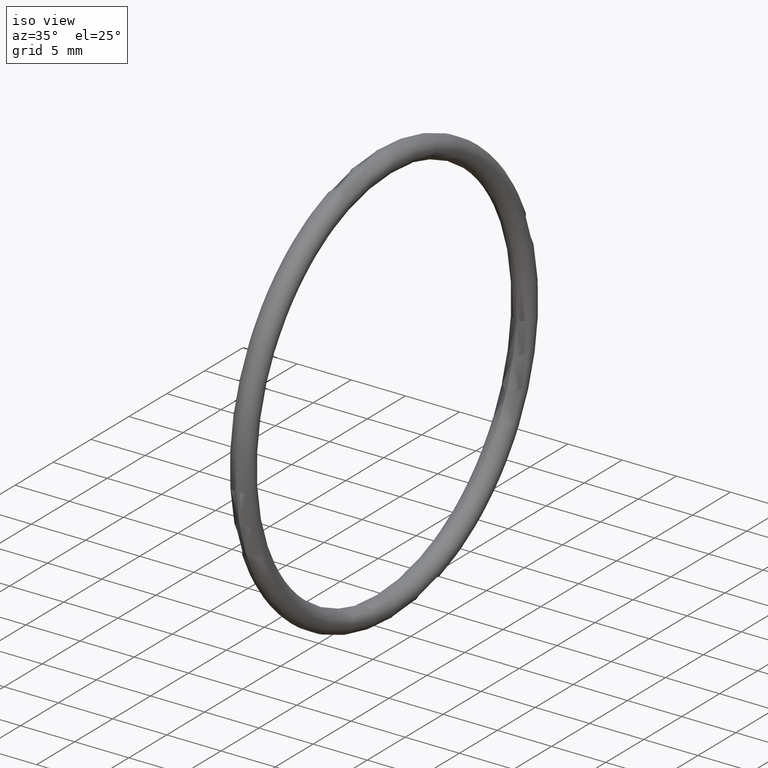
[diagram: clean part render]
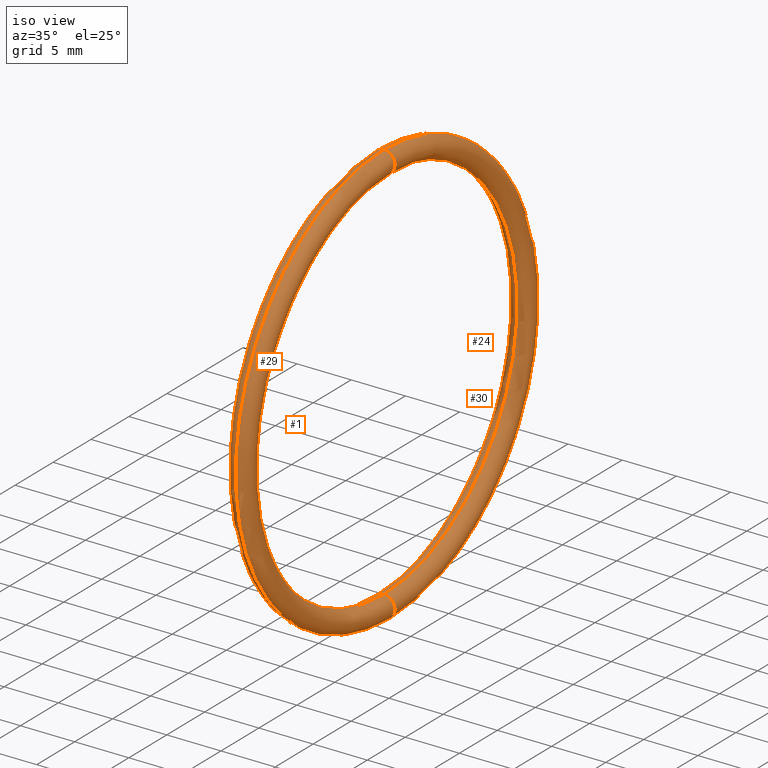
[diagram: same view with one multi-face feature highlighted, each face labeled with its STEP entity id]
A machine part, iso view. The highlighted faces form ONE feature: a constant-radius fillet chain: 4 tangent blend faces with common blend radius 1.016 mm. The faces share edges in the B-rep.
Their STEP definitions:
[1] entity #30 (Torus):
#8 = VERTEX_POINT ( 'NONE', #41 ) ;
#10 = EDGE_CURVE ( 'NONE', #11, #8, #48, .T. ) ;
#11 = VERTEX_POINT ( 'NONE', #56 ) ;
#22 = ORIENTED_EDGE ( 'NONE', *, *, #23, .F. ) ;
#23 = EDGE_CURVE ( 'NONE', #28, #8, #184, .T. ) ;
#25 = ORIENTED_EDGE ( 'NONE', *, *, #27, .F. ) ;
#26 = EDGE_LOOP ( 'NONE', ( #25, #39, #34, #22 ) ) ;
#27 = EDGE_CURVE ( 'NONE', #37, #28, #113, .T. ) ;
#28 = VERTEX_POINT ( 'NONE', #192 ) ;
#30 = ADVANCED_FACE ( 'NONE', ( #82 ), #80, .T. ) ;
#33 = EDGE_CURVE ( 'NONE', #37, #11, #110, .T. ) ;
#34 = ORIENTED_EDGE ( 'NONE', *, *, #10, .T. ) ;
#37 = VERTEX_POINT ( 'NONE', #94 ) ;
#39 = ORIENTED_EDGE ( 'NONE', *, *, #33, .T. ) ;
#41 = CARTESIAN_POINT ( 'NONE',  ( 0.1000000000000000900, 8.450062914116736900E-017, -0.6899999999999998400 ) ) ;
#46 = CARTESIAN_POINT ( 'NONE',  ( 0.1000000000000000900, 8.939921633775677100E-017, -0.7299999999999998700 ) ) ;
#47 = AXIS2_PLACEMENT_3D ( 'NONE', #46, #49, #57 ) ;
#48 = CIRCLE ( 'NONE', #47, 0.03999999999999998000 ) ;
#49 = DIRECTION ( 'NONE',  ( 0.0000000000000000000, 1.000000000000000000, 1.224646799147353200E-016 ) ) ;
#56 = CARTESIAN_POINT ( 'NONE',  ( 0.1000000000000000900, 9.429780353434617300E-017, -0.7699999999999996800 ) ) ;
#57 = DIRECTION ( 'NONE',  ( 0.0000000000000000000, -1.224646799147351000E-016, 1.000000000000000000 ) ) ;
#80 = TOROIDAL_SURFACE ( 'NONE', #81, 0.7299999999999998700, 0.03999999999999997300 ) ;
#81 = AXIS2_PLACEMENT_3D ( 'NONE', #87, #86, #85 ) ;
#82 = FACE_OUTER_BOUND ( 'NONE', #26, .T. ) ;
#84 = DIRECTION ( 'NONE',  ( 0.0000000000000000000, 0.0000000000000000000, 1.000000000000000000 ) ) ;
#85 = DIRECTION ( 'NONE',  ( 0.0000000000000000000, 0.0000000000000000000, 1.000000000000000000 ) ) ;
#86 = DIRECTION ( 'NONE',  ( -1.000000000000000000, 0.0000000000000000000, 0.0000000000000000000 ) ) ;
#87 = CARTESIAN_POINT ( 'NONE',  ( 0.1000000000000000900, 0.0000000000000000000, 0.0000000000000000000 ) ) ;
#94 = CARTESIAN_POINT ( 'NONE',  ( 0.1000000000000000900, 0.0000000000000000000, 0.7699999999999996800 ) ) ;
#102 = CARTESIAN_POINT ( 'NONE',  ( 0.1000000000000000900, 0.0000000000000000000, 0.7299999999999998700 ) ) ;
#104 = DIRECTION ( 'NONE',  ( -1.000000000000000000, 0.0000000000000000000, 0.0000000000000000000 ) ) ;
#106 = DIRECTION ( 'NONE',  ( 0.0000000000000000000, 0.0000000000000000000, 1.000000000000000000 ) ) ;
#107 = DIRECTION ( 'NONE',  ( -1.000000000000000000, 0.0000000000000000000, 0.0000000000000000000 ) ) ;
#108 = CARTESIAN_POINT ( 'NONE',  ( 0.1000000000000000900, 0.0000000000000000000, 0.0000000000000000000 ) ) ;
#109 = AXIS2_PLACEMENT_3D ( 'NONE', #108, #107, #106 ) ;
#110 = CIRCLE ( 'NONE', #109, 0.7699999999999998000 ) ;
#111 = DIRECTION ( 'NONE',  ( 0.0000000000000000000, -1.000000000000000000, 0.0000000000000000000 ) ) ;
#112 = AXIS2_PLACEMENT_3D ( 'NONE', #102, #111, #193 ) ;
#113 = CIRCLE ( 'NONE', #112, 0.03999999999999998000 ) ;
#117 = AXIS2_PLACEMENT_3D ( 'NONE', #178, #104, #84 ) ;
#178 = CARTESIAN_POINT ( 'NONE',  ( 0.1000000000000000900, 0.0000000000000000000, 0.0000000000000000000 ) ) ;
#184 = CIRCLE ( 'NONE', #117, 0.6899999999999998400 ) ;
#192 = CARTESIAN_POINT ( 'NONE',  ( 0.1000000000000000900, 0.0000000000000000000, 0.6899999999999998400 ) ) ;
#193 = DIRECTION ( 'NONE',  ( 0.0000000000000000000, 0.0000000000000000000, -1.000000000000000000 ) ) ;
[2] entity #24 (Torus):
#8 = VERTEX_POINT ( 'NONE', #41 ) ;
#11 = VERTEX_POINT ( 'NONE', #56 ) ;
#14 = ORIENTED_EDGE ( 'NONE', *, *, #15, .F. ) ;
#15 = EDGE_CURVE ( 'NONE', #28, #37, #54, .T. ) ;
#17 = EDGE_CURVE ( 'NONE', #8, #11, #61, .T. ) ;
#18 = ORIENTED_EDGE ( 'NONE', *, *, #17, .T. ) ;
#19 = ORIENTED_EDGE ( 'NONE', *, *, #23, .T. ) ;
#20 = ORIENTED_EDGE ( 'NONE', *, *, #33, .F. ) ;
#21 = EDGE_LOOP ( 'NONE', ( #20, #14, #19, #18 ) ) ;
#23 = EDGE_CURVE ( 'NONE', #28, #8, #184, .T. ) ;
#24 = ADVANCED_FACE ( 'NONE', ( #189 ), #79, .T. ) ;
#28 = VERTEX_POINT ( 'NONE', #192 ) ;
#33 = EDGE_CURVE ( 'NONE', #37, #11, #110, .T. ) ;
#37 = VERTEX_POINT ( 'NONE', #94 ) ;
#41 = CARTESIAN_POINT ( 'NONE',  ( 0.1000000000000000900, 8.450062914116736900E-017, -0.6899999999999998400 ) ) ;
#50 = DIRECTION ( 'NONE',  ( 0.0000000000000000000, -1.224646799147351000E-016, 1.000000000000000000 ) ) ;
#51 = DIRECTION ( 'NONE',  ( 0.0000000000000000000, 1.000000000000000000, 1.224646799147353200E-016 ) ) ;
#52 = AXIS2_PLACEMENT_3D ( 'NONE', #60, #51, #50 ) ;
#53 = AXIS2_PLACEMENT_3D ( 'NONE', #55, #59, #58 ) ;
#54 = CIRCLE ( 'NONE', #53, 0.03999999999999998000 ) ;
#55 = CARTESIAN_POINT ( 'NONE',  ( 0.1000000000000000900, 0.0000000000000000000, 0.7299999999999998700 ) ) ;
#56 = CARTESIAN_POINT ( 'NONE',  ( 0.1000000000000000900, 9.429780353434617300E-017, -0.7699999999999996800 ) ) ;
#58 = DIRECTION ( 'NONE',  ( 0.0000000000000000000, 0.0000000000000000000, -1.000000000000000000 ) ) ;
#59 = DIRECTION ( 'NONE',  ( 0.0000000000000000000, -1.000000000000000000, 0.0000000000000000000 ) ) ;
#60 = CARTESIAN_POINT ( 'NONE',  ( 0.1000000000000000900, 8.939921633775677100E-017, -0.7299999999999998700 ) ) ;
#61 = CIRCLE ( 'NONE', #52, 0.03999999999999998000 ) ;
#79 = TOROIDAL_SURFACE ( 'NONE', #119, 0.7299999999999998700, 0.03999999999999997300 ) ;
#84 = DIRECTION ( 'NONE',  ( 0.0000000000000000000, 0.0000000000000000000, 1.000000000000000000 ) ) ;
#94 = CARTESIAN_POINT ( 'NONE',  ( 0.1000000000000000900, 0.0000000000000000000, 0.7699999999999996800 ) ) ;
#103 = DIRECTION ( 'NONE',  ( 0.0000000000000000000, 0.0000000000000000000, 1.000000000000000000 ) ) ;
#104 = DIRECTION ( 'NONE',  ( -1.000000000000000000, 0.0000000000000000000, 0.0000000000000000000 ) ) ;
#106 = DIRECTION ( 'NONE',  ( 0.0000000000000000000, 0.0000000000000000000, 1.000000000000000000 ) ) ;
#107 = DIRECTION ( 'NONE',  ( -1.000000000000000000, 0.0000000000000000000, 0.0000000000000000000 ) ) ;
#108 = CARTESIAN_POINT ( 'NONE',  ( 0.1000000000000000900, 0.0000000000000000000, 0.0000000000000000000 ) ) ;
#109 = AXIS2_PLACEMENT_3D ( 'NONE', #108, #107, #106 ) ;
#110 = CIRCLE ( 'NONE', #109, 0.7699999999999998000 ) ;
#117 = AXIS2_PLACEMENT_3D ( 'NONE', #178, #104, #84 ) ;
#118 = DIRECTION ( 'NONE',  ( -1.000000000000000000, 0.0000000000000000000, 0.0000000000000000000 ) ) ;
#119 = AXIS2_PLACEMENT_3D ( 'NONE', #188, #118, #103 ) ;
#178 = CARTESIAN_POINT ( 'NONE',  ( 0.1000000000000000900, 0.0000000000000000000, 0.0000000000000000000 ) ) ;
#184 = CIRCLE ( 'NONE', #117, 0.6899999999999998400 ) ;
#188 = CARTESIAN_POINT ( 'NONE',  ( 0.1000000000000000900, 0.0000000000000000000, 0.0000000000000000000 ) ) ;
#189 = FACE_OUTER_BOUND ( 'NONE', #21, .T. ) ;
#192 = CARTESIAN_POINT ( 'NONE',  ( 0.1000000000000000900, 0.0000000000000000000, 0.6899999999999998400 ) ) ;
[3] entity #1 (Torus):
#1 = ADVANCED_FACE ( 'NONE', ( #38 ), #40, .T. ) ;
#2 = EDGE_LOOP ( 'NONE', ( #16, #5, #7, #4 ) ) ;
#4 = ORIENTED_EDGE ( 'NONE', *, *, #15, .T. ) ;
#5 = ORIENTED_EDGE ( 'NONE', *, *, #17, .F. ) ;
#7 = ORIENTED_EDGE ( 'NONE', *, *, #32, .T. ) ;
#8 = VERTEX_POINT ( 'NONE', #41 ) ;
#11 = VERTEX_POINT ( 'NONE', #56 ) ;
#15 = EDGE_CURVE ( 'NONE', #28, #37, #54, .T. ) ;
#16 = ORIENTED_EDGE ( 'NONE', *, *, #35, .F. ) ;
#17 = EDGE_CURVE ( 'NONE', #8, #11, #61, .T. ) ;
#28 = VERTEX_POINT ( 'NONE', #192 ) ;
#32 = EDGE_CURVE ( 'NONE', #8, #28, #92, .T. ) ;
#35 = EDGE_CURVE ( 'NONE', #11, #37, #105, .T. ) ;
#37 = VERTEX_POINT ( 'NONE', #94 ) ;
#38 = FACE_OUTER_BOUND ( 'NONE', #2, .T. ) ;
#40 = TOROIDAL_SURFACE ( 'NONE', #44, 0.7299999999999998700, 0.03999999999999997300 ) ;
#41 = CARTESIAN_POINT ( 'NONE',  ( 0.1000000000000000900, 8.450062914116736900E-017, -0.6899999999999998400 ) ) ;
#42 = DIRECTION ( 'NONE',  ( 0.0000000000000000000, 0.0000000000000000000, 1.000000000000000000 ) ) ;
#43 = DIRECTION ( 'NONE',  ( -1.000000000000000000, 0.0000000000000000000, 0.0000000000000000000 ) ) ;
#44 = AXIS2_PLACEMENT_3D ( 'NONE', #45, #43, #42 ) ;
#45 = CARTESIAN_POINT ( 'NONE',  ( 0.1000000000000000900, 0.0000000000000000000, 0.0000000000000000000 ) ) ;
#50 = DIRECTION ( 'NONE',  ( 0.0000000000000000000, -1.224646799147351000E-016, 1.000000000000000000 ) ) ;
#51 = DIRECTION ( 'NONE',  ( 0.0000000000000000000, 1.000000000000000000, 1.224646799147353200E-016 ) ) ;
#52 = AXIS2_PLACEMENT_3D ( 'NONE', #60, #51, #50 ) ;
#53 = AXIS2_PLACEMENT_3D ( 'NONE', #55, #59, #58 ) ;
#54 = CIRCLE ( 'NONE', #53, 0.03999999999999998000 ) ;
#55 = CARTESIAN_POINT ( 'NONE',  ( 0.1000000000000000900, 0.0000000000000000000, 0.7299999999999998700 ) ) ;
#56 = CARTESIAN_POINT ( 'NONE',  ( 0.1000000000000000900, 9.429780353434617300E-017, -0.7699999999999996800 ) ) ;
#58 = DIRECTION ( 'NONE',  ( 0.0000000000000000000, 0.0000000000000000000, -1.000000000000000000 ) ) ;
#59 = DIRECTION ( 'NONE',  ( 0.0000000000000000000, -1.000000000000000000, 0.0000000000000000000 ) ) ;
#60 = CARTESIAN_POINT ( 'NONE',  ( 0.1000000000000000900, 8.939921633775677100E-017, -0.7299999999999998700 ) ) ;
#61 = CIRCLE ( 'NONE', #52, 0.03999999999999998000 ) ;
#88 = DIRECTION ( 'NONE',  ( 0.0000000000000000000, 0.0000000000000000000, 1.000000000000000000 ) ) ;
#89 = DIRECTION ( 'NONE',  ( -1.000000000000000000, 0.0000000000000000000, 0.0000000000000000000 ) ) ;
#90 = CARTESIAN_POINT ( 'NONE',  ( 0.1000000000000000900, 0.0000000000000000000, 0.0000000000000000000 ) ) ;
#91 = AXIS2_PLACEMENT_3D ( 'NONE', #90, #89, #88 ) ;
#92 = CIRCLE ( 'NONE', #91, 0.6899999999999998400 ) ;
#94 = CARTESIAN_POINT ( 'NONE',  ( 0.1000000000000000900, 0.0000000000000000000, 0.7699999999999996800 ) ) ;
#95 = DIRECTION ( 'NONE',  ( 0.0000000000000000000, 0.0000000000000000000, 1.000000000000000000 ) ) ;
#96 = DIRECTION ( 'NONE',  ( -1.000000000000000000, 0.0000000000000000000, 0.0000000000000000000 ) ) ;
#97 = CARTESIAN_POINT ( 'NONE',  ( 0.1000000000000000900, 0.0000000000000000000, 0.0000000000000000000 ) ) ;
#98 = AXIS2_PLACEMENT_3D ( 'NONE', #97, #96, #95 ) ;
#105 = CIRCLE ( 'NONE', #98, 0.7699999999999998000 ) ;
#192 = CARTESIAN_POINT ( 'NONE',  ( 0.1000000000000000900, 0.0000000000000000000, 0.6899999999999998400 ) ) ;
[4] entity #29 (Torus):
#6 = EDGE_LOOP ( 'NONE', ( #13, #12, #36, #31 ) ) ;
#8 = VERTEX_POINT ( 'NONE', #41 ) ;
#10 = EDGE_CURVE ( 'NONE', #11, #8, #48, .T. ) ;
#11 = VERTEX_POINT ( 'NONE', #56 ) ;
#12 = ORIENTED_EDGE ( 'NONE', *, *, #35, .T. ) ;
#13 = ORIENTED_EDGE ( 'NONE', *, *, #10, .F. ) ;
#27 = EDGE_CURVE ( 'NONE', #37, #28, #113, .T. ) ;
#28 = VERTEX_POINT ( 'NONE', #192 ) ;
#29 = ADVANCED_FACE ( 'NONE', ( #191 ), #101, .T. ) ;
#31 = ORIENTED_EDGE ( 'NONE', *, *, #32, .F. ) ;
#32 = EDGE_CURVE ( 'NONE', #8, #28, #92, .T. ) ;
#35 = EDGE_CURVE ( 'NONE', #11, #37, #105, .T. ) ;
#36 = ORIENTED_EDGE ( 'NONE', *, *, #27, .T. ) ;
#37 = VERTEX_POINT ( 'NONE', #94 ) ;
#41 = CARTESIAN_POINT ( 'NONE',  ( 0.1000000000000000900, 8.450062914116736900E-017, -0.6899999999999998400 ) ) ;
#46 = CARTESIAN_POINT ( 'NONE',  ( 0.1000000000000000900, 8.939921633775677100E-017, -0.7299999999999998700 ) ) ;
#47 = AXIS2_PLACEMENT_3D ( 'NONE', #46, #49, #57 ) ;
#48 = CIRCLE ( 'NONE', #47, 0.03999999999999998000 ) ;
#49 = DIRECTION ( 'NONE',  ( 0.0000000000000000000, 1.000000000000000000, 1.224646799147353200E-016 ) ) ;
#56 = CARTESIAN_POINT ( 'NONE',  ( 0.1000000000000000900, 9.429780353434617300E-017, -0.7699999999999996800 ) ) ;
#57 = DIRECTION ( 'NONE',  ( 0.0000000000000000000, -1.224646799147351000E-016, 1.000000000000000000 ) ) ;
#83 = DIRECTION ( 'NONE',  ( 0.0000000000000000000, 0.0000000000000000000, 1.000000000000000000 ) ) ;
#88 = DIRECTION ( 'NONE',  ( 0.0000000000000000000, 0.0000000000000000000, 1.000000000000000000 ) ) ;
#89 = DIRECTION ( 'NONE',  ( -1.000000000000000000, 0.0000000000000000000, 0.0000000000000000000 ) ) ;
#90 = CARTESIAN_POINT ( 'NONE',  ( 0.1000000000000000900, 0.0000000000000000000, 0.0000000000000000000 ) ) ;
#91 = AXIS2_PLACEMENT_3D ( 'NONE', #90, #89, #88 ) ;
#92 = CIRCLE ( 'NONE', #91, 0.6899999999999998400 ) ;
#94 = CARTESIAN_POINT ( 'NONE',  ( 0.1000000000000000900, 0.0000000000000000000, 0.7699999999999996800 ) ) ;
#95 = DIRECTION ( 'NONE',  ( 0.0000000000000000000, 0.0000000000000000000, 1.000000000000000000 ) ) ;
#96 = DIRECTION ( 'NONE',  ( -1.000000000000000000, 0.0000000000000000000, 0.0000000000000000000 ) ) ;
#97 = CARTESIAN_POINT ( 'NONE',  ( 0.1000000000000000900, 0.0000000000000000000, 0.0000000000000000000 ) ) ;
#98 = AXIS2_PLACEMENT_3D ( 'NONE', #97, #96, #95 ) ;
#99 = DIRECTION ( 'NONE',  ( -1.000000000000000000, 0.0000000000000000000, 0.0000000000000000000 ) ) ;
#100 = AXIS2_PLACEMENT_3D ( 'NONE', #190, #99, #83 ) ;
#101 = TOROIDAL_SURFACE ( 'NONE', #100, 0.7299999999999998700, 0.03999999999999997300 ) ;
#102 = CARTESIAN_POINT ( 'NONE',  ( 0.1000000000000000900, 0.0000000000000000000, 0.7299999999999998700 ) ) ;
#105 = CIRCLE ( 'NONE', #98, 0.7699999999999998000 ) ;
#111 = DIRECTION ( 'NONE',  ( 0.0000000000000000000, -1.000000000000000000, 0.0000000000000000000 ) ) ;
#112 = AXIS2_PLACEMENT_3D ( 'NONE', #102, #111, #193 ) ;
#113 = CIRCLE ( 'NONE', #112, 0.03999999999999998000 ) ;
#190 = CARTESIAN_POINT ( 'NONE',  ( 0.1000000000000000900, 0.0000000000000000000, 0.0000000000000000000 ) ) ;
#191 = FACE_OUTER_BOUND ( 'NONE', #6, .T. ) ;
#192 = CARTESIAN_POINT ( 'NONE',  ( 0.1000000000000000900, 0.0000000000000000000, 0.6899999999999998400 ) ) ;
#193 = DIRECTION ( 'NONE',  ( 0.0000000000000000000, 0.0000000000000000000, -1.000000000000000000 ) ) ;